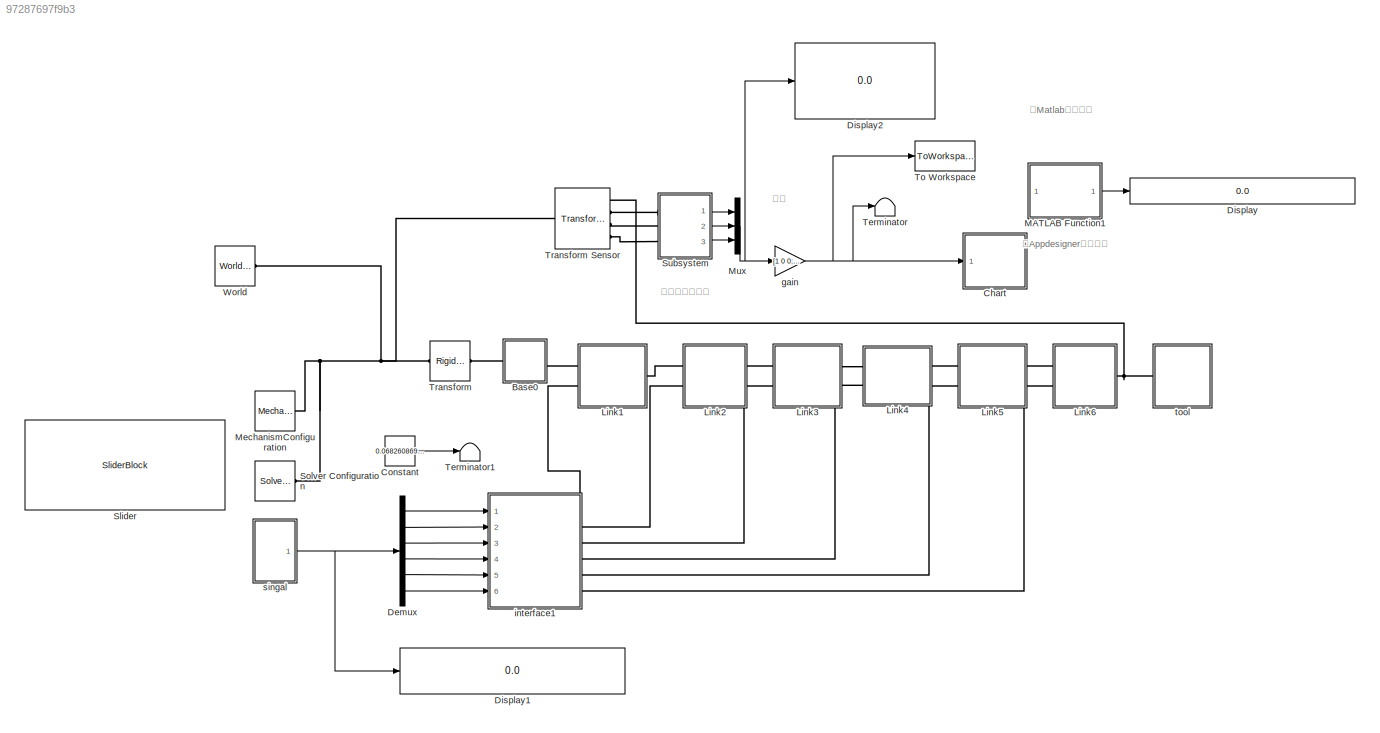
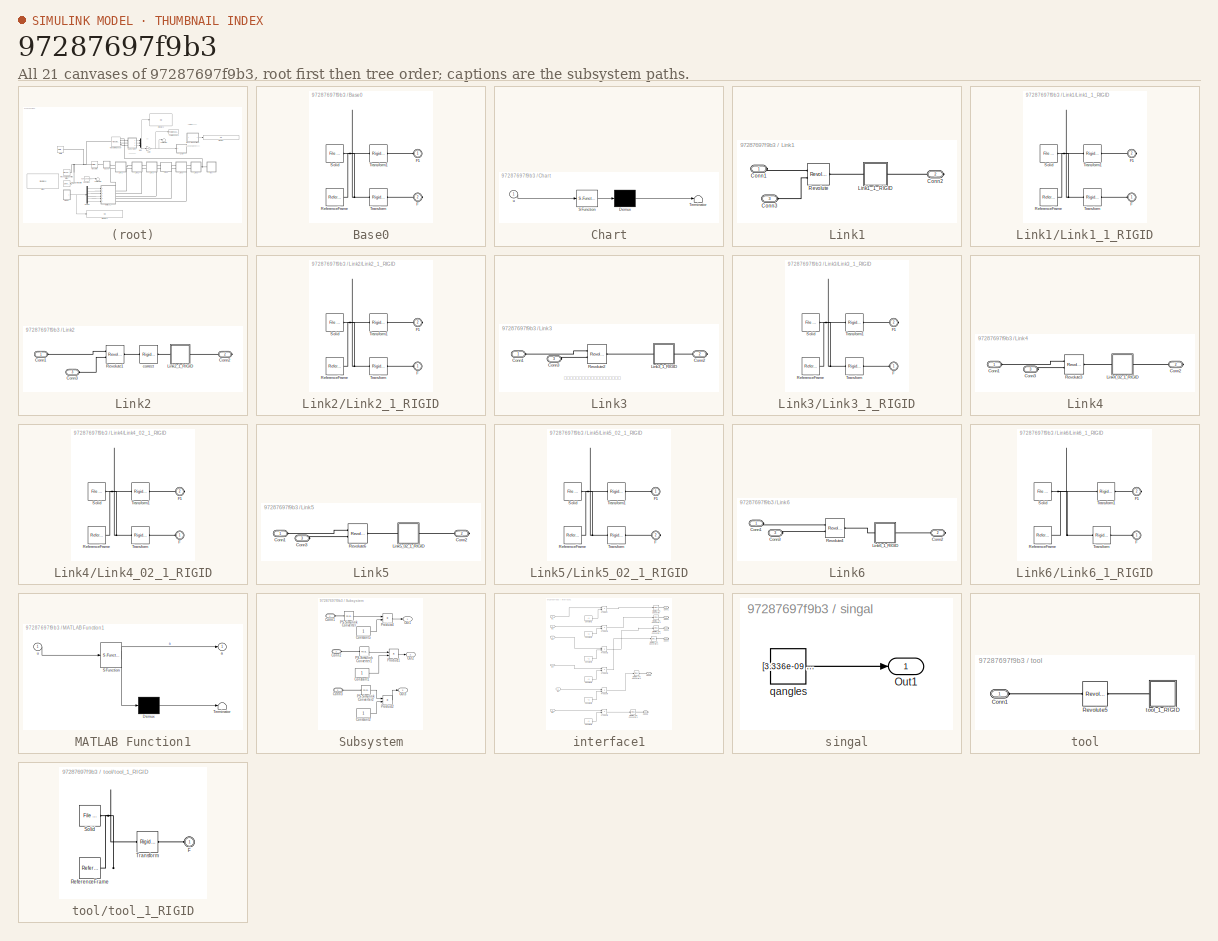
[diagram: thumbnail index - all 21 canvases of the model, root first then tree order]
MODEL slx_97287697f9b3
KIND model
CONFIG AbsTol = auto
CONFIG EnableMultiTasking = off
CONFIG FixedStep = 0.01
CONFIG InitFcn =  %sensorfig = figure('Name','Sensor plot','Position',[488.2000  341.8000  367.2000 288.8 ]);\n%创建用于传感器数据的figure
CONFIG MaxStep = auto
CONFIG MinStep = auto
CONFIG RelTol = 1e-3
CONFIG SampleTimeConstraint = Unconstrained
CONFIG Solver = VariableStepAuto
CONFIG SolverName = VariableStepAuto
CONFIG StartTime = 0.0
CONFIG StopFcn = %当程序执行完毕\n%pathplot %功能迁移到Appdesigner中
CONFIG StopTime = inf
WORKSPACE source: external: MATLAB File  (data not in archive)
BLOCK [SubSystem] Base0
  Ports = [0, 0, 0, 0, 0, 1, 1]
  RequestExecContextInheritance = off
BLOCK [PMIOPort] Base0/F
  Port = 2
  Side = Right
BLOCK [PMIOPort] Base0/F1
  Side = Left
BLOCK [Reference] Base0/ReferenceFrame  REF=sm_lib/Frames and
Transforms/Reference
Frame
  Ports = [0, 0, 0, 0, 0, 0, 1]
  SourceBlock = sm_lib/Frames and\nTransforms/Reference\nFrame
  SourceProductBaseCode = MS
  SourceProductName = Simscape Multibody
  SourceType = Reference\nFrame
BLOCK [Reference] Base0/Solid  REF=sm_lib/Body Elements/File Solid
  Ports = [0, 0, 0, 0, 0, 0, 1]
  SourceBlock = sm_lib/Body Elements/File Solid
  SourceProductBaseCode = MS
  SourceProductName = Simscape Multibody
  SourceType = File Solid
BLOCK [Reference] Base0/Transform  REF=sm_lib/Frames and
Transforms/Rigid
Transform
  Ports = [0, 0, 0, 0, 0, 1, 1]
  SourceBlock = sm_lib/Frames and\nTransforms/Rigid\nTransform
  SourceProductBaseCode = MS
  SourceProductName = Simscape Multibody
  SourceType = Rigid\nTransform
BLOCK [Reference] Base0/Transform1  REF=sm_lib/Frames and
Transforms/Rigid
Transform
  Ports = [0, 0, 0, 0, 0, 1, 1]
  SourceBlock = sm_lib/Frames and\nTransforms/Rigid\nTransform
  SourceProductBaseCode = MS
  SourceProductName = Simscape Multibody
  SourceType = Rigid\nTransform
BLOCK [SubSystem] Chart
  BlockKeywords = __PRM__SERIALIZED__DATA__:Stateflow Chart,Stateflow Diagram
  ErrorFcn = Stateflow.Translate.translate
  PermitHierarchicalResolution = ExplicitOnly
  Ports = [1]
  RequestExecContextInheritance = off
  SFBlockType = Chart
  TreatAsAtomicUnit = on
BLOCK [Demux] Chart/ Demux 
  Outputs = 1
  Ports = [1, 1]
BLOCK [S-Function] Chart/ SFunction 
  EnableBusSupport = on
  FunctionName = sf_sfun
  PortCounts = [1 1]
  Ports = [1, 1]
  SFcnIsStateOwnerBlock = off
  SFunctionDeploymentMode = off
  Tag = Stateflow S-Function 2
BLOCK [Terminator] Chart/ Terminator 
BLOCK [Inport] Chart/u
  IconDisplay = Port number
BLOCK [Constant] Constant
  Value = 0.0682608695652
BLOCK [Demux] Demux
  DisplayOption = bar
  Outputs = 6
  Ports = [1, 6]
BLOCK [Display] Display
  Commented = on
  Decimation = 1
  Ports = [1]
BLOCK [Display] Display1
  Decimation = 1
  Ports = [1]
BLOCK [Display] Display2
  Decimation = 1
  Ports = [1]
BLOCK [SubSystem] Link1
  Ports = [0, 0, 0, 0, 0, 2, 1]
  RequestExecContextInheritance = off
BLOCK [PMIOPort] Link1/Conn1
  Side = Left
BLOCK [PMIOPort] Link1/Conn2
  Port = 2
  Side = Right
BLOCK [PMIOPort] Link1/Conn3
  Port = 3
  Side = Left
BLOCK [SubSystem] Link1/Link1_1_RIGID
  Ports = [0, 0, 0, 0, 0, 1, 1]
  RequestExecContextInheritance = off
BLOCK [PMIOPort] Link1/Link1_1_RIGID/F
  Side = Left
BLOCK [PMIOPort] Link1/Link1_1_RIGID/F1
  Port = 2
  Side = Right
BLOCK [Reference] Link1/Link1_1_RIGID/ReferenceFrame  REF=sm_lib/Frames and
Transforms/Reference
Frame
  Ports = [0, 0, 0, 0, 0, 0, 1]
  SourceBlock = sm_lib/Frames and\nTransforms/Reference\nFrame
  SourceProductBaseCode = MS
  SourceProductName = Simscape Multibody
  SourceType = Reference\nFrame
BLOCK [Reference] Link1/Link1_1_RIGID/Solid  REF=sm_lib/Body Elements/File Solid
  Ports = [0, 0, 0, 0, 0, 0, 1]
  SourceBlock = sm_lib/Body Elements/File Solid
  SourceProductBaseCode = MS
  SourceProductName = Simscape Multibody
  SourceType = File Solid
BLOCK [Reference] Link1/Link1_1_RIGID/Transform  REF=sm_lib/Frames and
Transforms/Rigid
Transform
  Ports = [0, 0, 0, 0, 0, 1, 1]
  SourceBlock = sm_lib/Frames and\nTransforms/Rigid\nTransform
  SourceProductBaseCode = MS
  SourceProductName = Simscape Multibody
  SourceType = Rigid\nTransform
BLOCK [Reference] Link1/Link1_1_RIGID/Transform1  REF=sm_lib/Frames and
Transforms/Rigid
Transform
  Ports = [0, 0, 0, 0, 0, 1, 1]
  SourceBlock = sm_lib/Frames and\nTransforms/Rigid\nTransform
  SourceProductBaseCode = MS
  SourceProductName = Simscape Multibody
  SourceType = Rigid\nTransform
BLOCK [Reference] Link1/Revolute  REF=sm_lib/Joints/Revolute Joint
  Ports = [0, 0, 0, 0, 0, 2, 1]
  SourceBlock = sm_lib/Joints/Revolute Joint
  SourceProductBaseCode = MS
  SourceProductName = Simscape Multibody
  SourceType = Revolute Joint
BLOCK [SubSystem] Link2
  Ports = [0, 0, 0, 0, 0, 2, 1]
  RequestExecContextInheritance = off
BLOCK [PMIOPort] Link2/Conn1
  Side = Left
BLOCK [PMIOPort] Link2/Conn2
  Port = 2
  Side = Right
BLOCK [PMIOPort] Link2/Conn3
  Port = 3
  Side = Left
BLOCK [SubSystem] Link2/Link2_1_RIGID
  Ports = [0, 0, 0, 0, 0, 1, 1]
  RequestExecContextInheritance = off
BLOCK [PMIOPort] Link2/Link2_1_RIGID/F
  Side = Left
BLOCK [PMIOPort] Link2/Link2_1_RIGID/F1
  Port = 2
  Side = Right
BLOCK [Reference] Link2/Link2_1_RIGID/ReferenceFrame  REF=sm_lib/Frames and
Transforms/Reference
Frame
  Ports = [0, 0, 0, 0, 0, 0, 1]
  SourceBlock = sm_lib/Frames and\nTransforms/Reference\nFrame
  SourceProductBaseCode = MS
  SourceProductName = Simscape Multibody
  SourceType = Reference\nFrame
BLOCK [Reference] Link2/Link2_1_RIGID/Solid  REF=sm_lib/Body Elements/File Solid
  Ports = [0, 0, 0, 0, 0, 0, 1]
  SourceBlock = sm_lib/Body Elements/File Solid
  SourceProductBaseCode = MS
  SourceProductName = Simscape Multibody
  SourceType = File Solid
BLOCK [Reference] Link2/Link2_1_RIGID/Transform  REF=sm_lib/Frames and
Transforms/Rigid
Transform
  Ports = [0, 0, 0, 0, 0, 1, 1]
  SourceBlock = sm_lib/Frames and\nTransforms/Rigid\nTransform
  SourceProductBaseCode = MS
  SourceProductName = Simscape Multibody
  SourceType = Rigid\nTransform
BLOCK [Reference] Link2/Link2_1_RIGID/Transform1  REF=sm_lib/Frames and
Transforms/Rigid
Transform
  Ports = [0, 0, 0, 0, 0, 1, 1]
  SourceBlock = sm_lib/Frames and\nTransforms/Rigid\nTransform
  SourceProductBaseCode = MS
  SourceProductName = Simscape Multibody
  SourceType = Rigid\nTransform
BLOCK [Reference] Link2/Revolute1  REF=sm_lib/Joints/Revolute Joint
  Ports = [0, 0, 0, 0, 0, 2, 1]
  SourceBlock = sm_lib/Joints/Revolute Joint
  SourceProductBaseCode = MS
  SourceProductName = Simscape Multibody
  SourceType = Revolute Joint
BLOCK [Reference] Link2/correct  REF=sm_lib/Frames and
Transforms/Rigid
Transform
  Ports = [0, 0, 0, 0, 0, 1, 1]
  SourceBlock = sm_lib/Frames and\nTransforms/Rigid\nTransform
  SourceProductBaseCode = MS
  SourceProductName = Simscape Multibody
  SourceType = Rigid\nTransform
BLOCK [SubSystem] Link3
  Ports = [0, 0, 0, 0, 0, 2, 1]
  RequestExecContextInheritance = off
BLOCK [PMIOPort] Link3/Conn1
  Side = Left
BLOCK [PMIOPort] Link3/Conn2
  Port = 2
  Side = Right
BLOCK [PMIOPort] Link3/Conn3
  Port = 3
  Side = Left
BLOCK [SubSystem] Link3/Link3_1_RIGID
  Ports = [0, 0, 0, 0, 0, 1, 1]
  RequestExecContextInheritance = off
BLOCK [PMIOPort] Link3/Link3_1_RIGID/F
  Side = Left
BLOCK [PMIOPort] Link3/Link3_1_RIGID/F1
  Port = 2
  Side = Right
BLOCK [Reference] Link3/Link3_1_RIGID/ReferenceFrame  REF=sm_lib/Frames and
Transforms/Reference
Frame
  Ports = [0, 0, 0, 0, 0, 0, 1]
  SourceBlock = sm_lib/Frames and\nTransforms/Reference\nFrame
  SourceProductBaseCode = MS
  SourceProductName = Simscape Multibody
  SourceType = Reference\nFrame
BLOCK [Reference] Link3/Link3_1_RIGID/Solid  REF=sm_lib/Body Elements/File Solid
  Ports = [0, 0, 0, 0, 0, 0, 1]
  SourceBlock = sm_lib/Body Elements/File Solid
  SourceProductBaseCode = MS
  SourceProductName = Simscape Multibody
  SourceType = File Solid
BLOCK [Reference] Link3/Link3_1_RIGID/Transform  REF=sm_lib/Frames and
Transforms/Rigid
Transform
  Ports = [0, 0, 0, 0, 0, 1, 1]
  SourceBlock = sm_lib/Frames and\nTransforms/Rigid\nTransform
  SourceProductBaseCode = MS
  SourceProductName = Simscape Multibody
  SourceType = Rigid\nTransform
BLOCK [Reference] Link3/Link3_1_RIGID/Transform1  REF=sm_lib/Frames and
Transforms/Rigid
Transform
  Ports = [0, 0, 0, 0, 0, 1, 1]
  SourceBlock = sm_lib/Frames and\nTransforms/Rigid\nTransform
  SourceProductBaseCode = MS
  SourceProductName = Simscape Multibody
  SourceType = Rigid\nTransform
BLOCK [Reference] Link3/Revolute2  REF=sm_lib/Joints/Revolute Joint
  Ports = [0, 0, 0, 0, 0, 2, 1]
  SourceBlock = sm_lib/Joints/Revolute Joint
  SourceProductBaseCode = MS
  SourceProductName = Simscape Multibody
  SourceType = Revolute Joint
BLOCK [SubSystem] Link4
  Ports = [0, 0, 0, 0, 0, 2, 1]
  RequestExecContextInheritance = off
BLOCK [PMIOPort] Link4/Conn1
  Side = Left
BLOCK [PMIOPort] Link4/Conn2
  Port = 2
  Side = Right
BLOCK [PMIOPort] Link4/Conn3
  Port = 3
  Side = Left
BLOCK [SubSystem] Link4/Link4_02_1_RIGID
  Ports = [0, 0, 0, 0, 0, 1, 1]
  RequestExecContextInheritance = off
BLOCK [PMIOPort] Link4/Link4_02_1_RIGID/F
  Side = Left
BLOCK [PMIOPort] Link4/Link4_02_1_RIGID/F1
  Port = 2
  Side = Right
BLOCK [Reference] Link4/Link4_02_1_RIGID/ReferenceFrame  REF=sm_lib/Frames and
Transforms/Reference
Frame
  Ports = [0, 0, 0, 0, 0, 0, 1]
  SourceBlock = sm_lib/Frames and\nTransforms/Reference\nFrame
  SourceProductBaseCode = MS
  SourceProductName = Simscape Multibody
  SourceType = Reference\nFrame
BLOCK [Reference] Link4/Link4_02_1_RIGID/Solid  REF=sm_lib/Body Elements/File Solid
  Ports = [0, 0, 0, 0, 0, 0, 1]
  SourceBlock = sm_lib/Body Elements/File Solid
  SourceProductBaseCode = MS
  SourceProductName = Simscape Multibody
  SourceType = File Solid
BLOCK [Reference] Link4/Link4_02_1_RIGID/Transform  REF=sm_lib/Frames and
Transforms/Rigid
Transform
  Ports = [0, 0, 0, 0, 0, 1, 1]
  SourceBlock = sm_lib/Frames and\nTransforms/Rigid\nTransform
  SourceProductBaseCode = MS
  SourceProductName = Simscape Multibody
  SourceType = Rigid\nTransform
BLOCK [Reference] Link4/Link4_02_1_RIGID/Transform1  REF=sm_lib/Frames and
Transforms/Rigid
Transform
  Ports = [0, 0, 0, 0, 0, 1, 1]
  SourceBlock = sm_lib/Frames and\nTransforms/Rigid\nTransform
  SourceProductBaseCode = MS
  SourceProductName = Simscape Multibody
  SourceType = Rigid\nTransform
BLOCK [Reference] Link4/Revolute3  REF=sm_lib/Joints/Revolute Joint
  Ports = [0, 0, 0, 0, 0, 2, 1]
  SourceBlock = sm_lib/Joints/Revolute Joint
  SourceProductBaseCode = MS
  SourceProductName = Simscape Multibody
  SourceType = Revolute Joint
BLOCK [SubSystem] Link5
  Ports = [0, 0, 0, 0, 0, 2, 1]
  RequestExecContextInheritance = off
BLOCK [PMIOPort] Link5/Conn1
  Side = Left
BLOCK [PMIOPort] Link5/Conn2
  Port = 2
  Side = Right
BLOCK [PMIOPort] Link5/Conn3
  Port = 3
  Side = Left
BLOCK [SubSystem] Link5/Link5_02_1_RIGID
  Ports = [0, 0, 0, 0, 0, 1, 1]
  RequestExecContextInheritance = off
BLOCK [PMIOPort] Link5/Link5_02_1_RIGID/F
  Port = 2
  Side = Right
BLOCK [PMIOPort] Link5/Link5_02_1_RIGID/F1
  Side = Left
BLOCK [Reference] Link5/Link5_02_1_RIGID/ReferenceFrame  REF=sm_lib/Frames and
Transforms/Reference
Frame
  Ports = [0, 0, 0, 0, 0, 0, 1]
  SourceBlock = sm_lib/Frames and\nTransforms/Reference\nFrame
  SourceProductBaseCode = MS
  SourceProductName = Simscape Multibody
  SourceType = Reference\nFrame
BLOCK [Reference] Link5/Link5_02_1_RIGID/Solid  REF=sm_lib/Body Elements/File Solid
  Ports = [0, 0, 0, 0, 0, 0, 1]
  SourceBlock = sm_lib/Body Elements/File Solid
  SourceProductBaseCode = MS
  SourceProductName = Simscape Multibody
  SourceType = File Solid
BLOCK [Reference] Link5/Link5_02_1_RIGID/Transform  REF=sm_lib/Frames and
Transforms/Rigid
Transform
  Ports = [0, 0, 0, 0, 0, 1, 1]
  SourceBlock = sm_lib/Frames and\nTransforms/Rigid\nTransform
  SourceProductBaseCode = MS
  SourceProductName = Simscape Multibody
  SourceType = Rigid\nTransform
BLOCK [Reference] Link5/Link5_02_1_RIGID/Transform1  REF=sm_lib/Frames and
Transforms/Rigid
Transform
  Ports = [0, 0, 0, 0, 0, 1, 1]
  SourceBlock = sm_lib/Frames and\nTransforms/Rigid\nTransform
  SourceProductBaseCode = MS
  SourceProductName = Simscape Multibody
  SourceType = Rigid\nTransform
BLOCK [Reference] Link5/Revolute6  REF=sm_lib/Joints/Revolute Joint
  Ports = [0, 0, 0, 0, 0, 2, 1]
  SourceBlock = sm_lib/Joints/Revolute Joint
  SourceProductBaseCode = MS
  SourceProductName = Simscape Multibody
  SourceType = Revolute Joint
BLOCK [SubSystem] Link6
  Ports = [0, 0, 0, 0, 0, 2, 1]
  RequestExecContextInheritance = off
BLOCK [PMIOPort] Link6/Conn1
  Side = Left
BLOCK [PMIOPort] Link6/Conn2
  Port = 2
  Side = Right
BLOCK [PMIOPort] Link6/Conn3
  Port = 3
  Side = Left
BLOCK [SubSystem] Link6/Link6_1_RIGID
  Ports = [0, 0, 0, 0, 0, 1, 1]
  RequestExecContextInheritance = off
BLOCK [PMIOPort] Link6/Link6_1_RIGID/F
  Side = Left
BLOCK [PMIOPort] Link6/Link6_1_RIGID/F1
  Port = 2
  Side = Right
BLOCK [Reference] Link6/Link6_1_RIGID/ReferenceFrame  REF=sm_lib/Frames and
Transforms/Reference
Frame
  Ports = [0, 0, 0, 0, 0, 0, 1]
  SourceBlock = sm_lib/Frames and\nTransforms/Reference\nFrame
  SourceProductBaseCode = MS
  SourceProductName = Simscape Multibody
  SourceType = Reference\nFrame
BLOCK [Reference] Link6/Link6_1_RIGID/Solid  REF=sm_lib/Body Elements/File Solid
  Ports = [0, 0, 0, 0, 0, 0, 1]
  SourceBlock = sm_lib/Body Elements/File Solid
  SourceProductBaseCode = MS
  SourceProductName = Simscape Multibody
  SourceType = File Solid
BLOCK [Reference] Link6/Link6_1_RIGID/Transform  REF=sm_lib/Frames and
Transforms/Rigid
Transform
  Ports = [0, 0, 0, 0, 0, 1, 1]
  SourceBlock = sm_lib/Frames and\nTransforms/Rigid\nTransform
  SourceProductBaseCode = MS
  SourceProductName = Simscape Multibody
  SourceType = Rigid\nTransform
BLOCK [Reference] Link6/Link6_1_RIGID/Transform1  REF=sm_lib/Frames and
Transforms/Rigid
Transform
  Ports = [0, 0, 0, 0, 0, 1, 1]
  SourceBlock = sm_lib/Frames and\nTransforms/Rigid\nTransform
  SourceProductBaseCode = MS
  SourceProductName = Simscape Multibody
  SourceType = Rigid\nTransform
BLOCK [Reference] Link6/Revolute4  REF=sm_lib/Joints/Revolute Joint
  Ports = [0, 0, 0, 0, 0, 2, 1]
  SourceBlock = sm_lib/Joints/Revolute Joint
  SourceProductBaseCode = MS
  SourceProductName = Simscape Multibody
  SourceType = Revolute Joint
BLOCK [SubSystem] MATLAB Function1
  Commented = on
  ErrorFcn = Stateflow.Translate.translate
  PermitHierarchicalResolution = ExplicitOnly
  Ports = [1, 1]
  RequestExecContextInheritance = off
  SFBlockType = MATLAB Function
  TreatAsAtomicUnit = on
BLOCK [Demux] MATLAB Function1/ Demux 
  Outputs = 1
  Ports = [1, 1]
BLOCK [S-Function] MATLAB Function1/ SFunction 
  EnableBusSupport = on
  FunctionName = sf_sfun
  PortCounts = [1 2]
  Ports = [1, 2]
  SFcnIsStateOwnerBlock = off
  SFunctionDeploymentMode = off
  Tag = Stateflow S-Function 3
BLOCK [Terminator] MATLAB Function1/ Terminator 
BLOCK [Outport] MATLAB Function1/a
  IconDisplay = Port number
BLOCK [Inport] MATLAB Function1/u
  IconDisplay = Port number
BLOCK [Reference] MechanismConfiguration  REF=sm_lib/Utilities/Mechanism
Configuration
  Ports = [0, 0, 0, 0, 0, 0, 1]
  SourceBlock = sm_lib/Utilities/Mechanism\nConfiguration
  SourceProductBaseCode = MS
  SourceProductName = Simscape Multibody
  SourceType = Mechanism\nConfiguration
BLOCK [Mux] Mux
  DisplayOption = bar
  Inputs = 3
  Ports = [3, 1]
BLOCK [SliderBlock] Slider
  ScaleMax = 3.14
BLOCK [Reference] Solver Configuration  REF=nesl_utility/Solver
Configuration
  Ports = [0, 0, 0, 0, 0, 0, 1]
  SourceBlock = nesl_utility/Solver\nConfiguration
  SourceProductBaseCode = SS
  SourceProductName = Simscape
  SourceType = Solver\nConfiguration
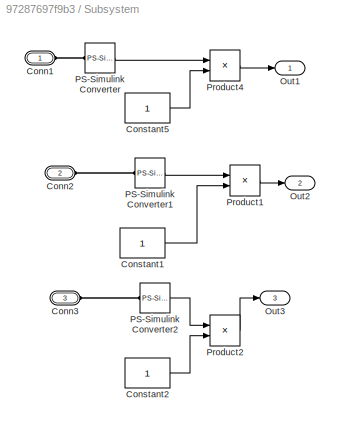
BLOCK [SubSystem] Subsystem
  Ports = [0, 3, 0, 0, 0, 3]
  RequestExecContextInheritance = off
BLOCK [PMIOPort] Subsystem/Conn1
  Side = Left
BLOCK [PMIOPort] Subsystem/Conn2
  Port = 2
  Side = Left
BLOCK [PMIOPort] Subsystem/Conn3
  Port = 3
  Side = Left
BLOCK [Constant] Subsystem/Constant1
  SampleTime = 0.1
BLOCK [Constant] Subsystem/Constant2
  SampleTime = 0.1
BLOCK [Constant] Subsystem/Constant5
  SampleTime = 0.1
BLOCK [Outport] Subsystem/Out1
  IconDisplay = Port number
BLOCK [Outport] Subsystem/Out2
  IconDisplay = Port number
  Port = 2
BLOCK [Outport] Subsystem/Out3
  IconDisplay = Port number
  Port = 3
BLOCK [Reference] Subsystem/PS-Simulink Converter  REF=nesl_utility/PS-Simulink
Converter
  Ports = [0, 1, 0, 0, 0, 1]
  SourceBlock = nesl_utility/PS-Simulink\nConverter
  SourceProductBaseCode = SS
  SourceProductName = Simscape
  SourceType = PS-Simulink\nConverter
BLOCK [Reference] Subsystem/PS-Simulink Converter1  REF=nesl_utility/PS-Simulink
Converter
  Ports = [0, 1, 0, 0, 0, 1]
  SourceBlock = nesl_utility/PS-Simulink\nConverter
  SourceProductBaseCode = SS
  SourceProductName = Simscape
  SourceType = PS-Simulink\nConverter
BLOCK [Reference] Subsystem/PS-Simulink Converter2  REF=nesl_utility/PS-Simulink
Converter
  Ports = [0, 1, 0, 0, 0, 1]
  SourceBlock = nesl_utility/PS-Simulink\nConverter
  SourceProductBaseCode = SS
  SourceProductName = Simscape
  SourceType = PS-Simulink\nConverter
BLOCK [Product] Subsystem/Product1
  InputSameDT = off
  OutDataTypeStr = Inherit: Inherit via internal rule
  Ports = [2, 1]
  RndMeth = Floor
  SaturateOnIntegerOverflow = off
BLOCK [Product] Subsystem/Product2
  InputSameDT = off
  OutDataTypeStr = Inherit: Inherit via internal rule
  Ports = [2, 1]
  RndMeth = Floor
  SaturateOnIntegerOverflow = off
BLOCK [Product] Subsystem/Product4
  InputSameDT = off
  OutDataTypeStr = Inherit: Inherit via internal rule
  Ports = [2, 1]
  RndMeth = Floor
  SaturateOnIntegerOverflow = off
BLOCK [Terminator] Terminator
BLOCK [Terminator] Terminator1
BLOCK [ToWorkspace] To Workspace
  FixptAsFi = on
  MaxDataPoints = inf
  Ports = [1]
  SampleTime = -1
  Save2DSignal = 2-D array (concatenate along first dimension)
  VariableName = simout
BLOCK [Reference] Transform  REF=sm_lib/Frames and
Transforms/Rigid
Transform
  Ports = [0, 0, 0, 0, 0, 1, 1]
  SourceBlock = sm_lib/Frames and\nTransforms/Rigid\nTransform
  SourceProductBaseCode = MS
  SourceProductName = Simscape Multibody
  SourceType = Rigid\nTransform
BLOCK [Reference] Transform Sensor  REF=sm_lib/Frames and
Transforms/Transform
Sensor
  Ports = [0, 0, 0, 0, 0, 1, 4]
  SourceBlock = sm_lib/Frames and\nTransforms/Transform\nSensor
  SourceProductBaseCode = MS
  SourceProductName = Simscape Multibody
  SourceType = Transform\nSensor
BLOCK [Reference] World  REF=sm_lib/Frames and
Transforms/World Frame
  Ports = [0, 0, 0, 0, 0, 0, 1]
  SourceBlock = sm_lib/Frames and\nTransforms/World Frame
  SourceProductBaseCode = MS
  SourceProductName = Simscape Multibody
  SourceType = World Frame
BLOCK [Gain] gain
  Gain = [1 0 0;0 0 -1;0 1 0]
  Multiplication = Matrix(K*u)
  OutDataTypeStr = Inherit: Inherit via internal rule
  ParamDataTypeStr = Inherit: Inherit via internal rule
  SaturateOnIntegerOverflow = off
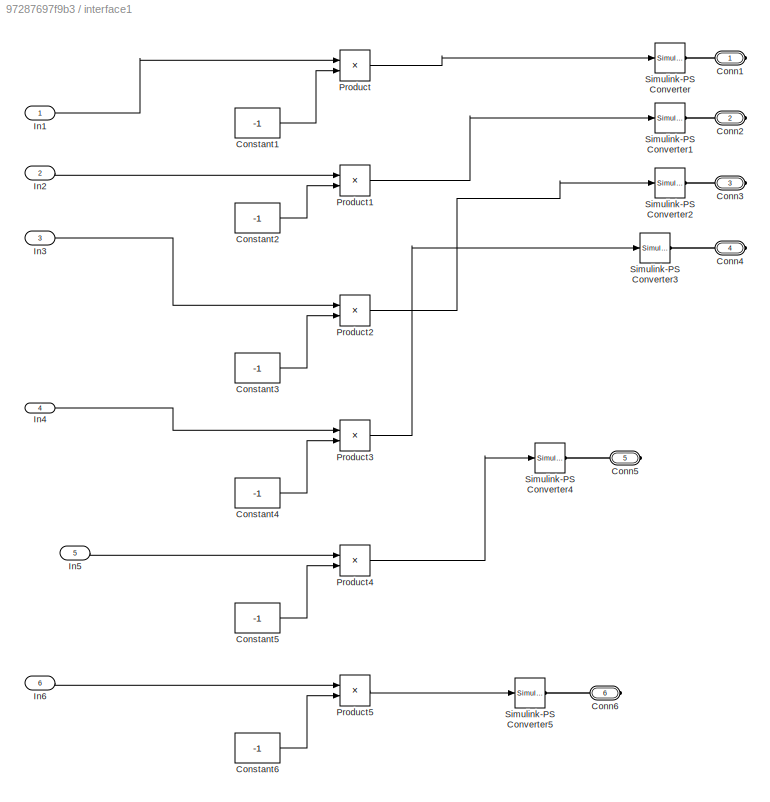
BLOCK [SubSystem] interface1
  Ports = [6, 0, 0, 0, 0, 0, 6]
  RequestExecContextInheritance = off
BLOCK [PMIOPort] interface1/Conn1
  Side = Right
BLOCK [PMIOPort] interface1/Conn2
  Port = 2
  Side = Right
BLOCK [PMIOPort] interface1/Conn3
  Port = 3
  Side = Right
BLOCK [PMIOPort] interface1/Conn4
  Port = 4
  Side = Right
BLOCK [PMIOPort] interface1/Conn5
  Port = 5
  Side = Right
BLOCK [PMIOPort] interface1/Conn6
  Port = 6
  Side = Right
BLOCK [Constant] interface1/Constant1
  SampleTime = 0.1
  Value = -1
BLOCK [Constant] interface1/Constant2
  SampleTime = 0.1
  Value = -1
BLOCK [Constant] interface1/Constant3
  SampleTime = 0.1
  Value = -1
BLOCK [Constant] interface1/Constant4
  SampleTime = 0.1
  Value = -1
BLOCK [Constant] interface1/Constant5
  SampleTime = 0.1
  Value = -1
BLOCK [Constant] interface1/Constant6
  SampleTime = 0.1
  Value = -1
BLOCK [Inport] interface1/In1
  IconDisplay = Port number
BLOCK [Inport] interface1/In2
  IconDisplay = Port number
  Port = 2
BLOCK [Inport] interface1/In3
  IconDisplay = Port number
  Port = 3
BLOCK [Inport] interface1/In4
  IconDisplay = Port number
  Port = 4
BLOCK [Inport] interface1/In5
  IconDisplay = Port number
  Port = 5
BLOCK [Inport] interface1/In6
  IconDisplay = Port number
  Port = 6
BLOCK [Product] interface1/Product
  InputSameDT = off
  OutDataTypeStr = Inherit: Inherit via internal rule
  Ports = [2, 1]
  RndMeth = Floor
  SaturateOnIntegerOverflow = off
BLOCK [Product] interface1/Product1
  InputSameDT = off
  OutDataTypeStr = Inherit: Inherit via internal rule
  Ports = [2, 1]
  RndMeth = Floor
  SaturateOnIntegerOverflow = off
BLOCK [Product] interface1/Product2
  InputSameDT = off
  OutDataTypeStr = Inherit: Inherit via internal rule
  Ports = [2, 1]
  RndMeth = Floor
  SaturateOnIntegerOverflow = off
BLOCK [Product] interface1/Product3
  InputSameDT = off
  OutDataTypeStr = Inherit: Inherit via internal rule
  Ports = [2, 1]
  RndMeth = Floor
  SaturateOnIntegerOverflow = off
BLOCK [Product] interface1/Product4
  InputSameDT = off
  OutDataTypeStr = Inherit: Inherit via internal rule
  Ports = [2, 1]
  RndMeth = Floor
  SaturateOnIntegerOverflow = off
BLOCK [Product] interface1/Product5
  InputSameDT = off
  OutDataTypeStr = Inherit: Inherit via internal rule
  Ports = [2, 1]
  RndMeth = Floor
  SaturateOnIntegerOverflow = off
BLOCK [Reference] interface1/Simulink-PS Converter  REF=nesl_utility/Simulink-PS
Converter
  Ports = [1, 0, 0, 0, 0, 0, 1]
  SourceBlock = nesl_utility/Simulink-PS\nConverter
  SourceProductBaseCode = SS
  SourceProductName = Simscape
  SourceType = Simulink-PS\nConverter
BLOCK [Reference] interface1/Simulink-PS Converter1  REF=nesl_utility/Simulink-PS
Converter
  Ports = [1, 0, 0, 0, 0, 0, 1]
  SourceBlock = nesl_utility/Simulink-PS\nConverter
  SourceProductBaseCode = SS
  SourceProductName = Simscape
  SourceType = Simulink-PS\nConverter
BLOCK [Reference] interface1/Simulink-PS Converter2  REF=nesl_utility/Simulink-PS
Converter
  Ports = [1, 0, 0, 0, 0, 0, 1]
  SourceBlock = nesl_utility/Simulink-PS\nConverter
  SourceProductBaseCode = SS
  SourceProductName = Simscape
  SourceType = Simulink-PS\nConverter
BLOCK [Reference] interface1/Simulink-PS Converter3  REF=nesl_utility/Simulink-PS
Converter
  Ports = [1, 0, 0, 0, 0, 0, 1]
  SourceBlock = nesl_utility/Simulink-PS\nConverter
  SourceProductBaseCode = SS
  SourceProductName = Simscape
  SourceType = Simulink-PS\nConverter
BLOCK [Reference] interface1/Simulink-PS Converter4  REF=nesl_utility/Simulink-PS
Converter
  Ports = [1, 0, 0, 0, 0, 0, 1]
  SourceBlock = nesl_utility/Simulink-PS\nConverter
  SourceProductBaseCode = SS
  SourceProductName = Simscape
  SourceType = Simulink-PS\nConverter
BLOCK [Reference] interface1/Simulink-PS Converter5  REF=nesl_utility/Simulink-PS
Converter
  Ports = [1, 0, 0, 0, 0, 0, 1]
  SourceBlock = nesl_utility/Simulink-PS\nConverter
  SourceProductBaseCode = SS
  SourceProductName = Simscape
  SourceType = Simulink-PS\nConverter
BLOCK [SubSystem] singal
  Ports = [0, 1]
  RequestExecContextInheritance = off
BLOCK [Outport] singal/Out1
  IconDisplay = Port number
BLOCK [Constant] singal/qangles
  SampleTime = 0.1
  Value = [3.336e-09    -0.58025     0.15966 -3.6863e-09     0.42058  1.1449e-08]
  VectorParams1D = off
BLOCK [SubSystem] tool
  Ports = [0, 0, 0, 0, 0, 1]
  RequestExecContextInheritance = off
BLOCK [PMIOPort] tool/Conn1
  Side = Left
BLOCK [Reference] tool/Revolute5  REF=sm_lib/Joints/Revolute Joint
  Ports = [0, 0, 0, 0, 0, 1, 1]
  SourceBlock = sm_lib/Joints/Revolute Joint
  SourceProductBaseCode = MS
  SourceProductName = Simscape Multibody
  SourceType = Revolute Joint
BLOCK [SubSystem] tool/tool_1_RIGID
  Ports = [0, 0, 0, 0, 0, 1]
  RequestExecContextInheritance = off
BLOCK [PMIOPort] tool/tool_1_RIGID/F
  Side = Left
BLOCK [Reference] tool/tool_1_RIGID/ReferenceFrame  REF=sm_lib/Frames and
Transforms/Reference
Frame
  Ports = [0, 0, 0, 0, 0, 0, 1]
  SourceBlock = sm_lib/Frames and\nTransforms/Reference\nFrame
  SourceProductBaseCode = MS
  SourceProductName = Simscape Multibody
  SourceType = Reference\nFrame
BLOCK [Reference] tool/tool_1_RIGID/Solid  REF=sm_lib/Body Elements/File Solid
  Ports = [0, 0, 0, 0, 0, 0, 1]
  SourceBlock = sm_lib/Body Elements/File Solid
  SourceProductBaseCode = MS
  SourceProductName = Simscape Multibody
  SourceType = File Solid
BLOCK [Reference] tool/tool_1_RIGID/Transform  REF=sm_lib/Frames and
Transforms/Rigid
Transform
  Ports = [0, 0, 0, 0, 0, 1, 1]
  SourceBlock = sm_lib/Frames and\nTransforms/Rigid\nTransform
  SourceProductBaseCode = MS
  SourceProductName = Simscape Multibody
  SourceType = Rigid\nTransform
ANNOTATION (root): 变换
ANNOTATION (root): 在Appdesigner空间绘图
ANNOTATION (root): 在Matlab空间绘图
ANNOTATION (root): 左乘为正确逻辑
ANNOTATION Link3: 修正旋转角度的方向，正方向和负方向调换
LINE Constant:1 -> Terminator1:1
LINE Demux:1 -> interface1:1
LINE Demux:2 -> interface1:2
LINE Demux:3 -> interface1:3
LINE Demux:4 -> interface1:4
LINE Demux:5 -> interface1:5
LINE Demux:6 -> interface1:6
LINE MATLAB Function1:1 -> Display:1
NET Mux:1 -> Display2:1, gain:1
LINE Subsystem/Constant1:1 -> Subsystem/Product1:2
LINE Subsystem/Constant2:1 -> Subsystem/Product2:2
LINE Subsystem/Constant5:1 -> Subsystem/Product4:2
LINE Subsystem/PS-Simulink Converter1:1 -> Subsystem/Product1:1
LINE Subsystem/PS-Simulink Converter2:1 -> Subsystem/Product2:1
LINE Subsystem/PS-Simulink Converter:1 -> Subsystem/Product4:1
LINE Subsystem/Product1:1 -> Subsystem/Out2:1
LINE Subsystem/Product2:1 -> Subsystem/Out3:1
LINE Subsystem/Product4:1 -> Subsystem/Out1:1
LINE Subsystem:1 -> Mux:1
LINE Subsystem:2 -> Mux:2
LINE Subsystem:3 -> Mux:3
NET gain:1 -> Chart:1, Terminator:1, To Workspace:1
LINE interface1/Constant1:1 -> interface1/Product:2
LINE interface1/Constant2:1 -> interface1/Product1:2
LINE interface1/Constant3:1 -> interface1/Product2:2
LINE interface1/Constant4:1 -> interface1/Product3:2
LINE interface1/Constant5:1 -> interface1/Product4:2
LINE interface1/Constant6:1 -> interface1/Product5:2
LINE interface1/In1:1 -> interface1/Product:1
LINE interface1/In2:1 -> interface1/Product1:1
LINE interface1/In3:1 -> interface1/Product2:1
LINE interface1/In4:1 -> interface1/Product3:1
LINE interface1/In5:1 -> interface1/Product4:1
LINE interface1/In6:1 -> interface1/Product5:1
LINE interface1/Product1:1 -> interface1/Simulink-PS Converter1:1
LINE interface1/Product2:1 -> interface1/Simulink-PS Converter2:1
LINE interface1/Product3:1 -> interface1/Simulink-PS Converter3:1
LINE interface1/Product4:1 -> interface1/Simulink-PS Converter4:1
LINE interface1/Product5:1 -> interface1/Simulink-PS Converter5:1
LINE interface1/Product:1 -> interface1/Simulink-PS Converter:1
LINE singal/qangles:1 -> singal/Out1:1
NET singal:1 -> Demux:1, Display1:1
PLINE Base0/F1:RConn1 -- Base0/Transform1:RConn1
PLINE Base0/F:RConn1 -- Base0/Transform:RConn1
PNET net1: Base0/ReferenceFrame:RConn1 -- Base0/Solid:RConn1 -- Base0/Transform1:LConn1 -- Base0/Transform:LConn1
PLINE Base0:LConn1 -- Transform:RConn1
PLINE Base0:RConn1 -- Link1:LConn1
PLINE Link1/Conn1:RConn1 -- Link1/Revolute:LConn1
PLINE Link1/Conn2:RConn1 -- Link1/Link1_1_RIGID:RConn1
PLINE Link1/Conn3:RConn1 -- Link1/Revolute:LConn2
PLINE Link1/Link1_1_RIGID/F1:RConn1 -- Link1/Link1_1_RIGID/Transform1:RConn1
PLINE Link1/Link1_1_RIGID/F:RConn1 -- Link1/Link1_1_RIGID/Transform:RConn1
PNET net2: Link1/Link1_1_RIGID/ReferenceFrame:RConn1 -- Link1/Link1_1_RIGID/Solid:RConn1 -- Link1/Link1_1_RIGID/Transform1:LConn1 -- Link1/Link1_1_RIGID/Transform:LConn1
PLINE Link1/Link1_1_RIGID:LConn1 -- Link1/Revolute:RConn1
PLINE Link1:LConn2 -- interface1:RConn1
PLINE Link1:RConn1 -- Link2:LConn1
PLINE Link2/Conn1:RConn1 -- Link2/Revolute1:LConn1
PLINE Link2/Conn2:RConn1 -- Link2/Link2_1_RIGID:RConn1
PLINE Link2/Conn3:RConn1 -- Link2/Revolute1:LConn2
PLINE Link2/Link2_1_RIGID/F1:RConn1 -- Link2/Link2_1_RIGID/Transform1:RConn1
PLINE Link2/Link2_1_RIGID/F:RConn1 -- Link2/Link2_1_RIGID/Transform:RConn1
PNET net3: Link2/Link2_1_RIGID/ReferenceFrame:RConn1 -- Link2/Link2_1_RIGID/Solid:RConn1 -- Link2/Link2_1_RIGID/Transform1:LConn1 -- Link2/Link2_1_RIGID/Transform:LConn1
PLINE Link2/Link2_1_RIGID:LConn1 -- Link2/correct:RConn1
PLINE Link2/Revolute1:RConn1 -- Link2/correct:LConn1
PLINE Link2:LConn2 -- interface1:RConn2
PLINE Link2:RConn1 -- Link3:LConn1
PLINE Link3/Conn1:RConn1 -- Link3/Revolute2:LConn1
PLINE Link3/Conn2:RConn1 -- Link3/Link3_1_RIGID:RConn1
PLINE Link3/Conn3:RConn1 -- Link3/Revolute2:LConn2
PLINE Link3/Link3_1_RIGID/F1:RConn1 -- Link3/Link3_1_RIGID/Transform1:RConn1
PLINE Link3/Link3_1_RIGID/F:RConn1 -- Link3/Link3_1_RIGID/Transform:RConn1
PNET net4: Link3/Link3_1_RIGID/ReferenceFrame:RConn1 -- Link3/Link3_1_RIGID/Solid:RConn1 -- Link3/Link3_1_RIGID/Transform1:LConn1 -- Link3/Link3_1_RIGID/Transform:LConn1
PLINE Link3/Link3_1_RIGID:LConn1 -- Link3/Revolute2:RConn1
PLINE Link3:LConn2 -- interface1:RConn3
PLINE Link3:RConn1 -- Link4:LConn1
PLINE Link4/Conn1:RConn1 -- Link4/Revolute3:LConn1
PLINE Link4/Conn2:RConn1 -- Link4/Link4_02_1_RIGID:RConn1
PLINE Link4/Conn3:RConn1 -- Link4/Revolute3:LConn2
PLINE Link4/Link4_02_1_RIGID/F1:RConn1 -- Link4/Link4_02_1_RIGID/Transform1:RConn1
PLINE Link4/Link4_02_1_RIGID/F:RConn1 -- Link4/Link4_02_1_RIGID/Transform:RConn1
PNET net5: Link4/Link4_02_1_RIGID/ReferenceFrame:RConn1 -- Link4/Link4_02_1_RIGID/Solid:RConn1 -- Link4/Link4_02_1_RIGID/Transform1:LConn1 -- Link4/Link4_02_1_RIGID/Transform:LConn1
PLINE Link4/Link4_02_1_RIGID:LConn1 -- Link4/Revolute3:RConn1
PLINE Link4:LConn2 -- interface1:RConn4
PLINE Link4:RConn1 -- Link5:LConn1
PLINE Link5/Conn1:RConn1 -- Link5/Revolute6:LConn1
PLINE Link5/Conn2:RConn1 -- Link5/Link5_02_1_RIGID:RConn1
PLINE Link5/Conn3:RConn1 -- Link5/Revolute6:LConn2
PLINE Link5/Link5_02_1_RIGID/F1:RConn1 -- Link5/Link5_02_1_RIGID/Transform1:RConn1
PLINE Link5/Link5_02_1_RIGID/F:RConn1 -- Link5/Link5_02_1_RIGID/Transform:RConn1
PNET net6: Link5/Link5_02_1_RIGID/ReferenceFrame:RConn1 -- Link5/Link5_02_1_RIGID/Solid:RConn1 -- Link5/Link5_02_1_RIGID/Transform1:LConn1 -- Link5/Link5_02_1_RIGID/Transform:LConn1
PLINE Link5/Link5_02_1_RIGID:LConn1 -- Link5/Revolute6:RConn1
PLINE Link5:LConn2 -- interface1:RConn5
PLINE Link5:RConn1 -- Link6:LConn1
PLINE Link6/Conn1:RConn1 -- Link6/Revolute4:LConn1
PLINE Link6/Conn2:RConn1 -- Link6/Link6_1_RIGID:RConn1
PLINE Link6/Conn3:RConn1 -- Link6/Revolute4:LConn2
PLINE Link6/Link6_1_RIGID/F1:RConn1 -- Link6/Link6_1_RIGID/Transform1:RConn1
PLINE Link6/Link6_1_RIGID/F:RConn1 -- Link6/Link6_1_RIGID/Transform:RConn1
PNET net7: Link6/Link6_1_RIGID/ReferenceFrame:RConn1 -- Link6/Link6_1_RIGID/Solid:RConn1 -- Link6/Link6_1_RIGID/Transform1:LConn1 -- Link6/Link6_1_RIGID/Transform:LConn1
PLINE Link6/Link6_1_RIGID:LConn1 -- Link6/Revolute4:RConn1
PLINE Link6:LConn2 -- interface1:RConn6
PNET net8: Link6:RConn1 -- Transform Sensor:RConn1 -- tool:LConn1
PNET net9: MechanismConfiguration:RConn1 -- Solver Configuration:RConn1 -- Transform Sensor:LConn1 -- Transform:LConn1 -- World:RConn1
PLINE Subsystem/Conn1:RConn1 -- Subsystem/PS-Simulink Converter:LConn1
PLINE Subsystem/Conn2:RConn1 -- Subsystem/PS-Simulink Converter1:LConn1
PLINE Subsystem/Conn3:RConn1 -- Subsystem/PS-Simulink Converter2:LConn1
PLINE Subsystem:LConn1 -- Transform Sensor:RConn2
PLINE Subsystem:LConn2 -- Transform Sensor:RConn3
PLINE Subsystem:LConn3 -- Transform Sensor:RConn4
PLINE interface1/Conn1:RConn1 -- interface1/Simulink-PS Converter:RConn1
PLINE interface1/Conn2:RConn1 -- interface1/Simulink-PS Converter1:RConn1
PLINE interface1/Conn3:RConn1 -- interface1/Simulink-PS Converter2:RConn1
PLINE interface1/Conn4:RConn1 -- interface1/Simulink-PS Converter3:RConn1
PLINE interface1/Conn5:RConn1 -- interface1/Simulink-PS Converter4:RConn1
PLINE interface1/Conn6:RConn1 -- interface1/Simulink-PS Converter5:RConn1
PLINE tool/Conn1:RConn1 -- tool/Revolute5:LConn1
PLINE tool/Revolute5:RConn1 -- tool/tool_1_RIGID:LConn1
PLINE tool/tool_1_RIGID/F:RConn1 -- tool/tool_1_RIGID/Transform:RConn1
PNET net10: tool/tool_1_RIGID/ReferenceFrame:RConn1 -- tool/tool_1_RIGID/Solid:RConn1 -- tool/tool_1_RIGID/Transform:LConn1
note: NET lines group one-source signal fan-out (src -> all destinations, sorted); 1:1 wires keep LINE; PNET lines group multi-terminal physical nets as a canonical sorted terminal list (undirected conserving connections); 2-terminal nets keep the pairwise PLINE form
CHART Chart states=2 transitions=2
  STATE_LABEL "INIT\nen:\ncoder.extrinsic('controller2019','plotxyz')\napp=controller2019();"
  STATE_LABEL 'Plot\ndu:\nX=u(1); %取第一列数据\nY=u(2);\nZ=u(3);\nplotxyz(app,X,Y,Z);\n'
CHART MATLAB Function1 states=1 transitions=1
  STATE_LABEL 'eML_blk_kernel()'
  STATE_LABEL "SCRIPT:\nfunction a=plot3xyz(u)\n%function的麻烦之处在于，每次都要重复执行一遍，作用域很小\nX=u(1); %取第一列数据\nY=u(2);\nZ=u(3);\na=[X,Y,Z];\ncoder.extrinsic('evalin') \nfig = evalin('base','sensorfig');\nfigure(fig)\nplot3(X,Y,Z,'P');\n\n%camorbit(1,0,'data',[0 0 1])\n\nview(180,0);%沿着y轴看过去\nxlabel('x')\nylabel('y')\nzlabel('z')\ntitle('sensor')\nhold on\n\n\n"
